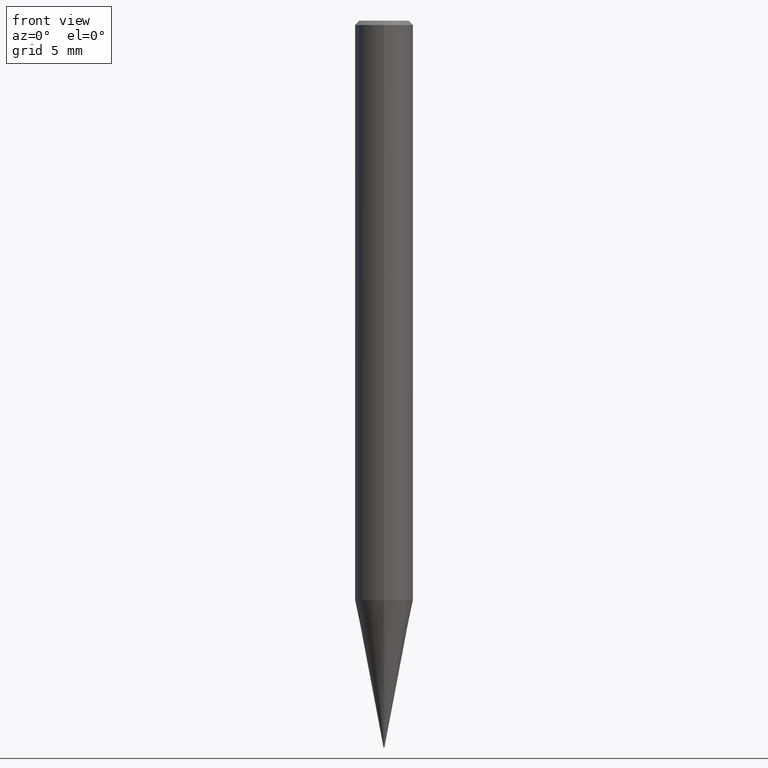
[diagram: clean part render]
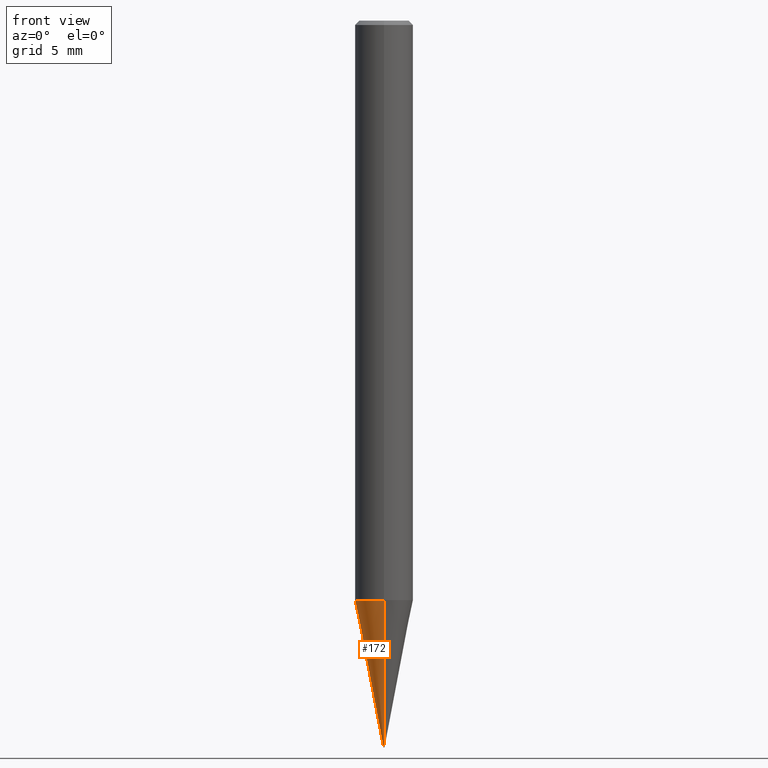
[diagram: same view with one face highlighted and labeled with its STEP entity id]
A machine part, front view. The second image highlights one B-rep face of the part: STEP entity #172.
In plain terms, the highlighted conical surface has half-angle 11 deg.
Its self-contained STEP definition (entity closure, byte-faithful):
#90=EDGE_CURVE('',#154,#144,#217,.T.);
#112=VERTEX_POINT('',#240);
#144=VERTEX_POINT('',#279);
#154=VERTEX_POINT('',#289);
#156=EDGE_CURVE('',#154,#190,#291,.T.);
#160=EDGE_CURVE('',#144,#112,#295,.T.);
#172=ADVANCED_FACE('',(#308),#309,.T.);
#188=EDGE_CURVE('',#112,#190,#328,.T.);
#190=VERTEX_POINT('',#330);
#217=LINE('',#350,#351);
#240=CARTESIAN_POINT('',(0.0,1.99995,-39.868));
#279=CARTESIAN_POINT('',(2.44915147732706E-016,-1.99995,-39.868));
#289=CARTESIAN_POINT('',(6.11690873734274E-018,-0.04995,-49.9));
#291=CIRCLE('',#444,0.04995);
#295=CIRCLE('',#450,1.99995);
#308=FACE_OUTER_BOUND('',#465,.T.);
#309=CONICAL_SURFACE('',#466,1.02495,0.191983983430966);
#328=LINE('',#488,#489);
#330=CARTESIAN_POINT('',(0.0,0.04995,-49.9));
#350=CARTESIAN_POINT('',(1.25516028235025E-016,-1.02495,-44.884));
#351=VECTOR('',#507,1.0);
#444=AXIS2_PLACEMENT_3D('',#596,#597,#598);
#450=AXIS2_PLACEMENT_3D('',#602,#603,#604);
#465=EDGE_LOOP('',(#615,#616,#617,#618));
#466=AXIS2_PLACEMENT_3D('',#619,#620,#621);
#488=CARTESIAN_POINT('',(-1.25516028235025E-016,1.02495,-44.884));
#489=VECTOR('',#649,1.0);
#507=DIRECTION('',(2.33663222250515E-017,-0.190806802137829,0.981627609767541));
#596=CARTESIAN_POINT('',(0.0,0.0,-49.9));
#597=DIRECTION('',(0.0,0.0,-1.0));
#598=DIRECTION('',(0.0,1.0,0.0));
#602=CARTESIAN_POINT('',(0.0,0.0,-39.868));
#603=DIRECTION('',(0.0,0.0,-1.0));
#604=DIRECTION('',(0.0,1.0,0.0));
#615=ORIENTED_EDGE('',*,*,#188,.T.);
#616=ORIENTED_EDGE('',*,*,#156,.F.);
#617=ORIENTED_EDGE('',*,*,#90,.T.);
#618=ORIENTED_EDGE('',*,*,#160,.T.);
#619=CARTESIAN_POINT('',(0.0,0.0,-44.884));
#620=DIRECTION('',(-0.0,-0.0,1.0));
#621=DIRECTION('',(0.0,1.0,0.0));
#649=DIRECTION('',(2.33663222250515E-017,-0.190806802137829,-0.981627609767541));